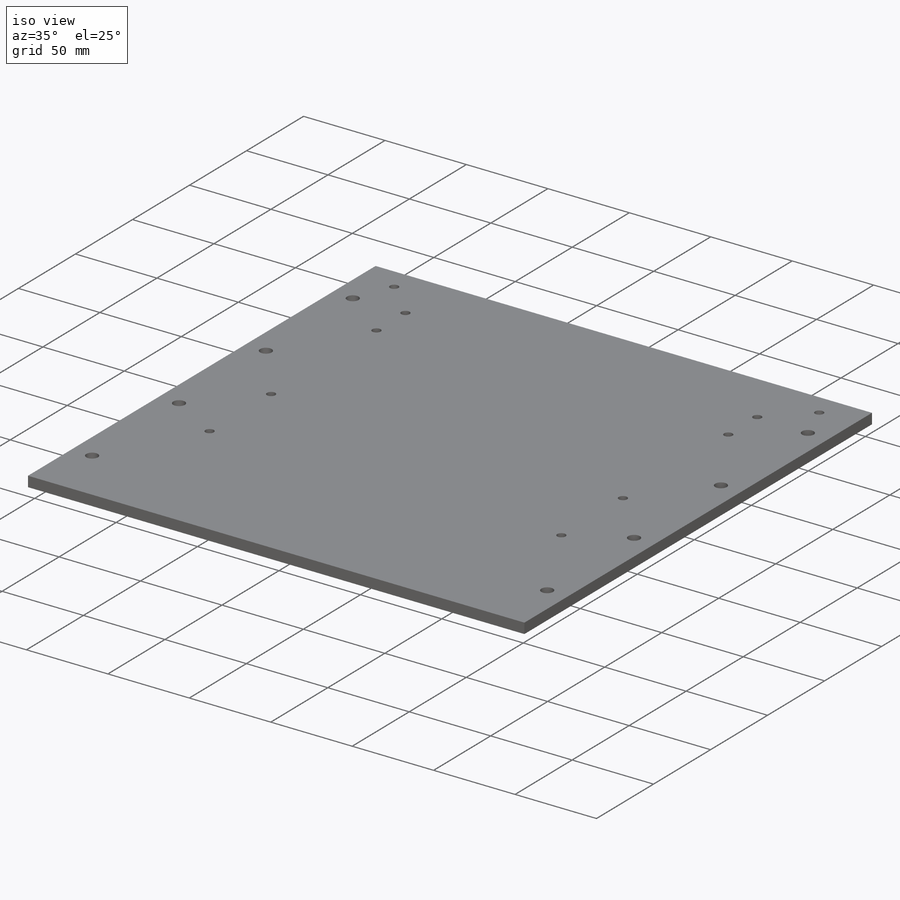
[diagram: iso view]
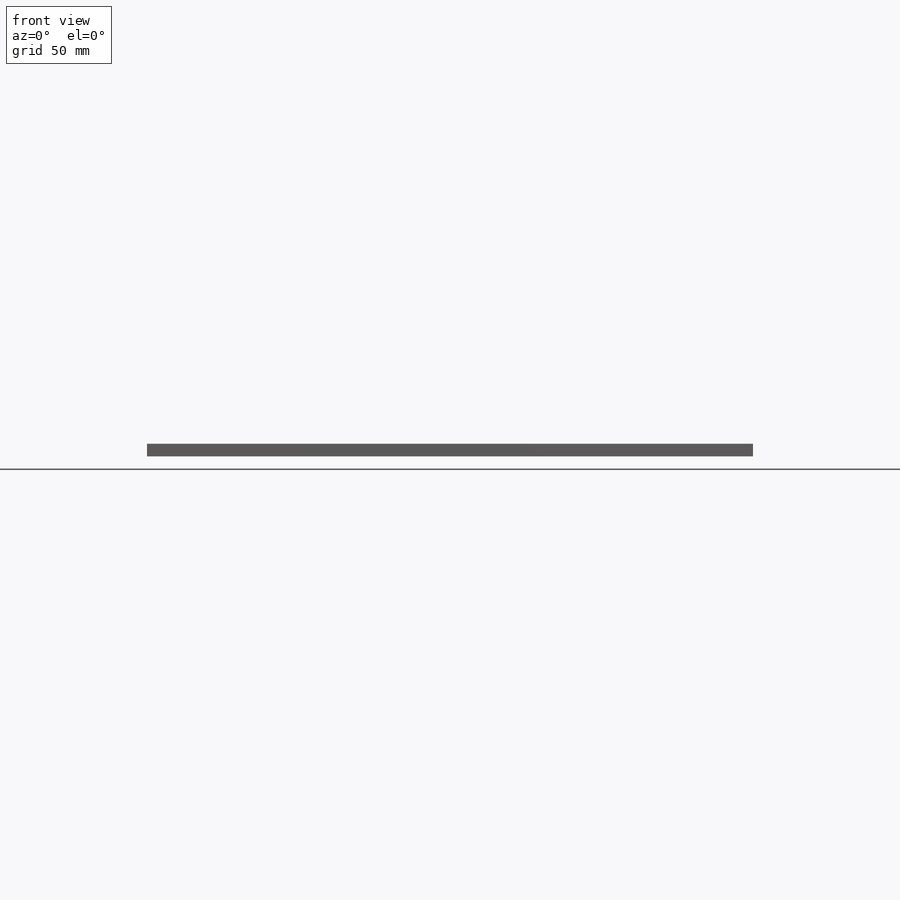
[diagram: front view]
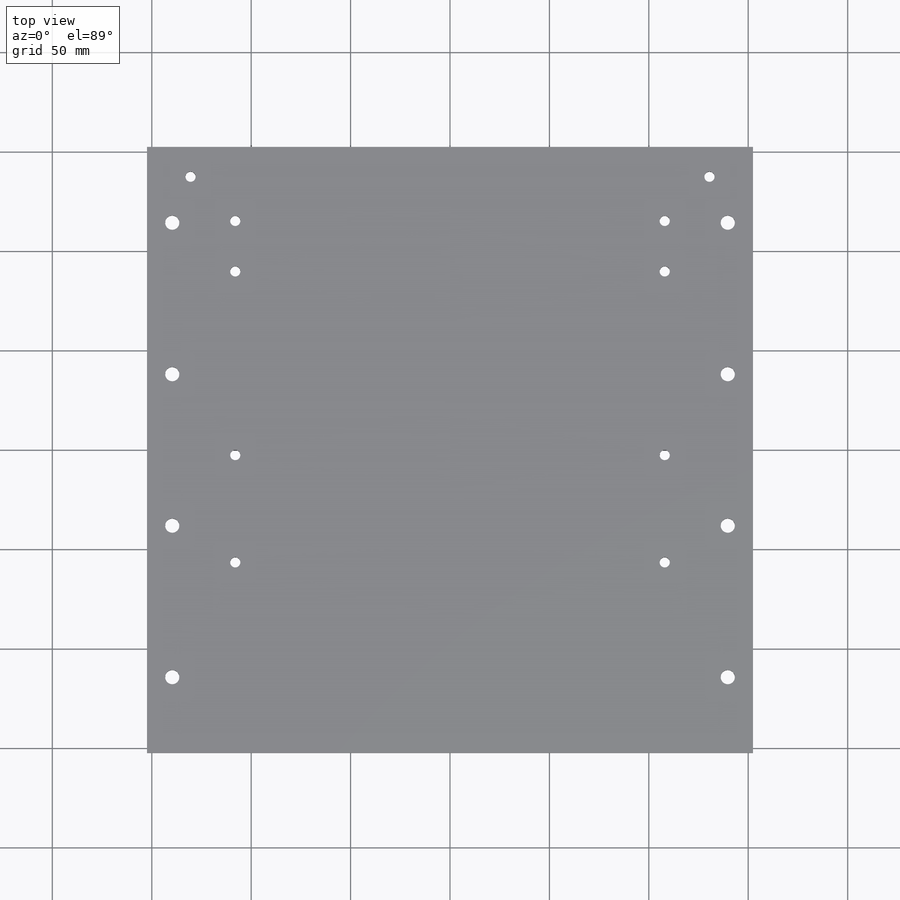
[diagram: top view]
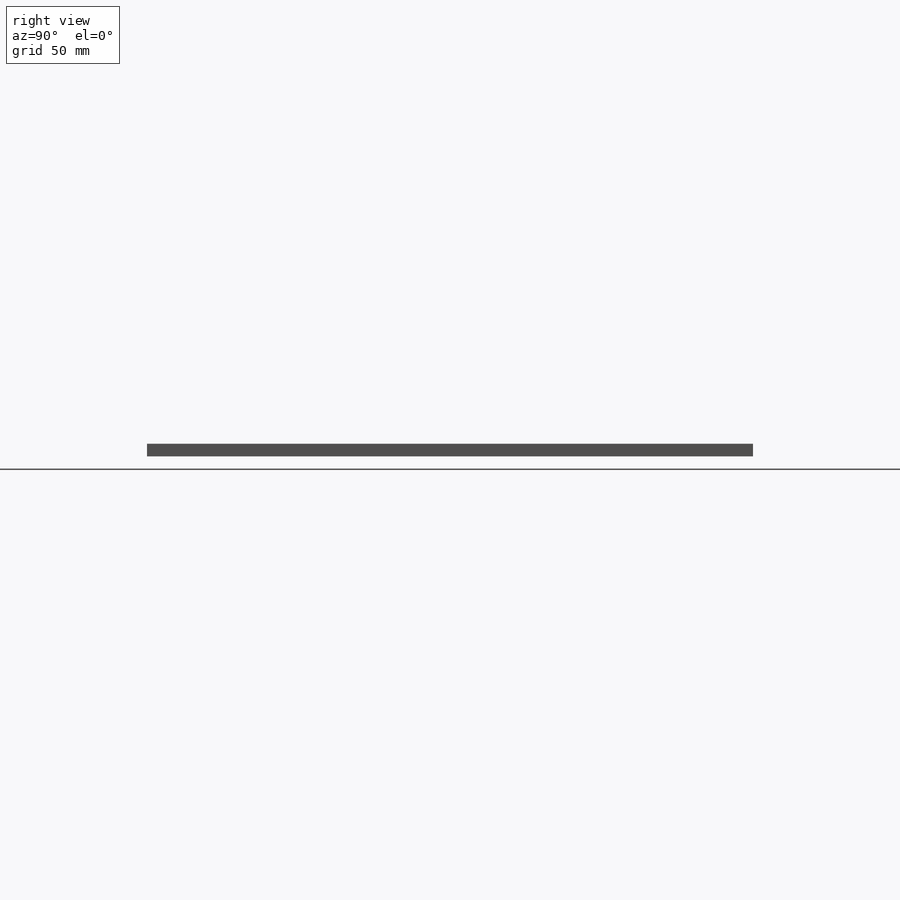
[diagram: right view]
SOLIDWORKS PART (.sldprt)
format: sldprt  version: not decoded by parser v0  size: 293,888 bytes
history: native  units: mm
features: sketch x5, thread x5, hole x2, material x1, extrude x1, pattern_linear x1, mirror x1 (+11 scaffold rows collapsed)
feature tree (27):
  scaffold x11  (default folders/planes/origin — collapsed)
  material  "6061-T6 (SS)"
  sketch  "Sketch1"  dims[D1=304.8mm D2=152.4mm]
  extrude  "Boss-Extrude1"  Depth=6.35mm
  hole  "1/4-20 Tapped Hole1"  Diameter=5.1054mm Depth=6.35mm
  sketch  "Sketch3"  dims[c1.D1=108.0mm c1.D2=130.5mm c1.D3=22.225mm c1.D4=15.0mm c1.D5=53.975mm c1.D6=140.0mm c2.D1=22.5mm c2.D7=25.4mm]
  sketch  "Sketch2"  dims[hole-wizard template sketch: 60 standard entries collapsed; hole parameters kept: c18.Thru Tap Drill Depth=6.35mm]
  thread  "Hole Thread1"  Diameter=6.35mm  [1 undecoded]
  thread  "Hole Thread2"  Diameter=6.35mm  [1 undecoded]
  thread  "Hole Thread4"  Diameter=6.35mm  [1 undecoded]
  thread  "Hole Thread5"  Diameter=6.35mm  [1 undecoded]
  thread  "Hole Thread6"  Diameter=6.35mm  [1 undecoded]
  hole  "1/4 Clearance Hole2"  Diameter=7.14248mm Depth=12.7mm
  sketch  "Sketch5"  dims[c1.D1=9.0mm c1.D2=38.1mm c1.D3=38.1mm c2.D1=142.875mm c2.D4=76.2mm c2.D5=~94.509995mm c3.D1=139.7mm]
  sketch  "Sketch4"  dims[hole-wizard template sketch: 47 standard entries collapsed; hole parameters kept: c15.Hole Depth=12.7mm c15.D3=~14.816244mm c15.Drill Angle=118.0deg]
  pattern_linear  "LPattern1"  Count1=4 Count2=1 Spacing1=76.2mm Spacing2=10mm
  mirror  "Mirror1"
decode coverage: 14 of 15 modeling features carry decoded parameters
note: ~ marks probable driven/reference dimensions
note: 5 parameter values undecoded
note: suppression state not decoded; provenance and decode notes live in map.json
